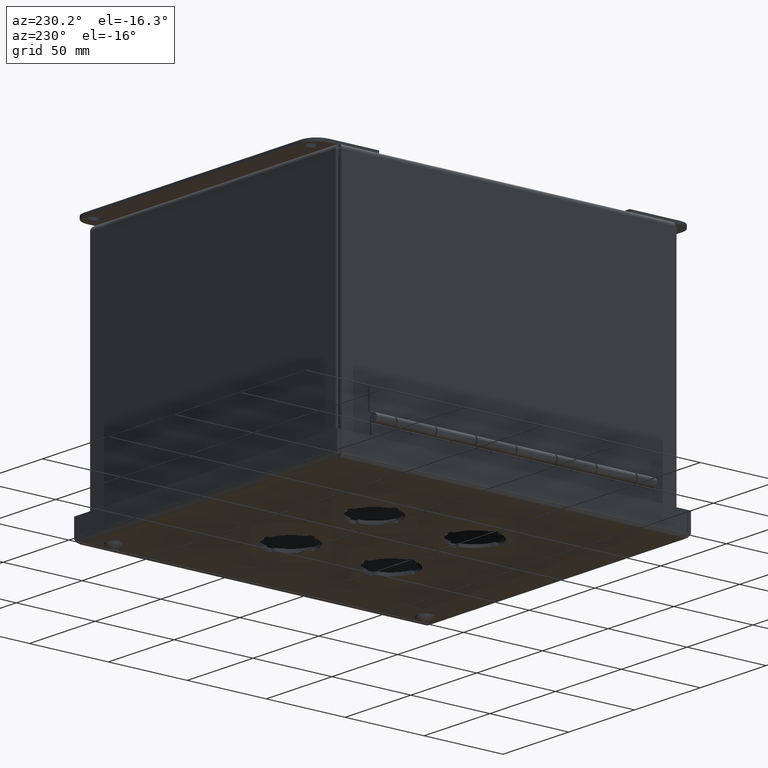
[diagram: clean part render]
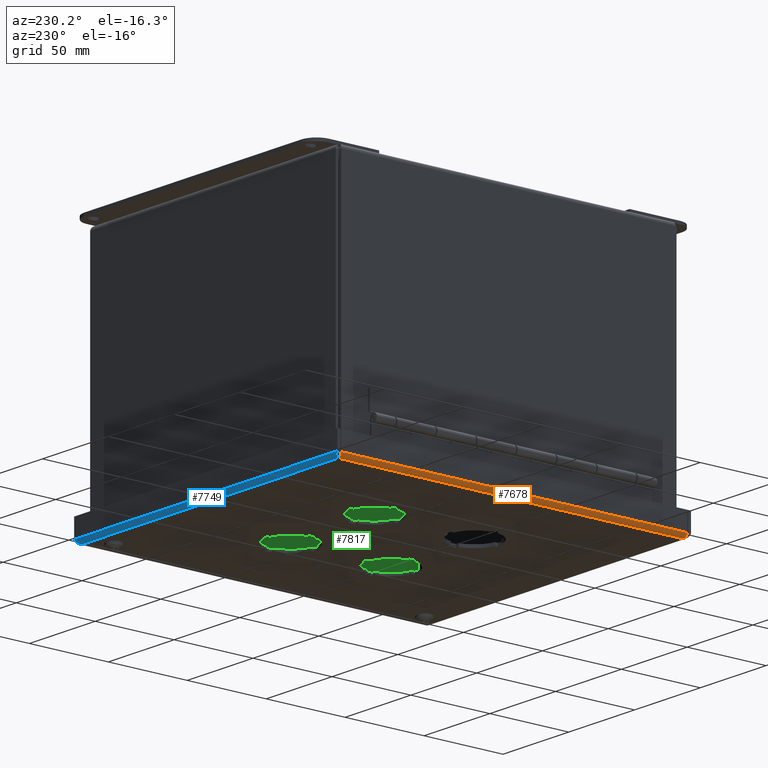
[diagram: same view with three faces highlighted in distinct colors, each labeled with its STEP entity id]
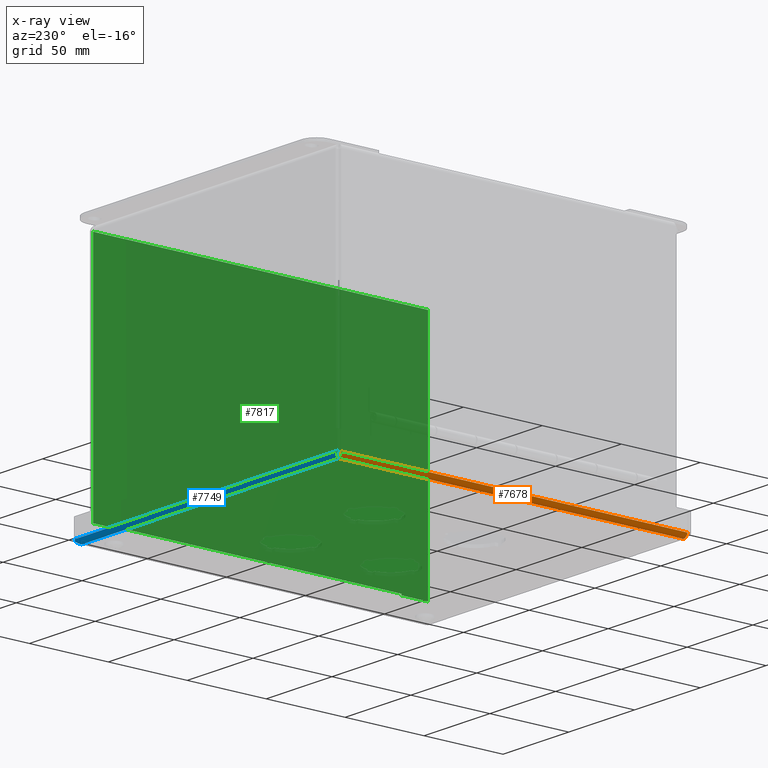
[diagram: x-ray of the same camera — body ghosted, the three highlighted faces saturated]
A machine part, auxiliary view with three faces highlighted in distinct colors.
The next image is the same camera in x-ray (body ghosted, the three faces saturated) — at least one of them is partly hidden behind the body in this view.
Their STEP definitions:

[orange] entity #7678 — the highlighted cylindrical surface (edge-blend (fillet) strip) has radius 2.6733 mm, axis along (0, 1, 0).
#603=B_SPLINE_CURVE_WITH_KNOTS('',3,(#11252,#11253,#11254,#11255),
 .UNSPECIFIED.,.F.,.F.,(4,4),(-1.,-0.824761208305063),.UNSPECIFIED.);
#605=B_SPLINE_CURVE_WITH_KNOTS('',3,(#11329,#11330,#11331,#11332,#11333),
 .UNSPECIFIED.,.F.,.F.,(4,1,4),(-0.824761208305118,-0.353469089273622,0.),
 .UNSPECIFIED.);
#608=B_SPLINE_CURVE_WITH_KNOTS('',3,(#11380,#11381,#11382,#11383,#11384,
#11385,#11386),.UNSPECIFIED.,.F.,.F.,(4,3,4),(1.66755498298699E-13,0.353469089273746,
0.824761208305099),.UNSPECIFIED.);
#610=B_SPLINE_CURVE_WITH_KNOTS('',3,(#11439,#11440,#11441,#11442),
 .UNSPECIFIED.,.F.,.F.,(4,4),(0.82476120830507,1.),.UNSPECIFIED.);
#672=CYLINDRICAL_SURFACE('',#8120,0.10525);
#810=FACE_OUTER_BOUND('',#1249,.T.);
#1249=EDGE_LOOP('',(#5085,#5086,#5087,#5088,#5089,#5090));
#1822=LINE('',#11304,#2536);
#1831=LINE('',#11444,#2545);
#2536=VECTOR('',#8887,8.64000000000001);
#2545=VECTOR('',#8906,8.6095);
#3233=VERTEX_POINT('',#11233);
#3235=VERTEX_POINT('',#11250);
#3237=VERTEX_POINT('',#11280);
#3242=VERTEX_POINT('',#11302);
#3245=VERTEX_POINT('',#11365);
#3246=VERTEX_POINT('',#11378);
#3952=EDGE_CURVE('',#3235,#3233,#603,.T.);
#3964=EDGE_CURVE('',#3242,#3235,#1822,.T.);
#3967=EDGE_CURVE('',#3233,#3237,#605,.T.);
#3973=EDGE_CURVE('',#3246,#3245,#608,.T.);
#3978=EDGE_CURVE('',#3245,#3242,#610,.T.);
#3979=EDGE_CURVE('',#3237,#3246,#1831,.T.);
#5085=ORIENTED_EDGE('',*,*,#3952,.F.);
#5086=ORIENTED_EDGE('',*,*,#3964,.F.);
#5087=ORIENTED_EDGE('',*,*,#3978,.F.);
#5088=ORIENTED_EDGE('',*,*,#3973,.F.);
#5089=ORIENTED_EDGE('',*,*,#3979,.F.);
#5090=ORIENTED_EDGE('',*,*,#3967,.F.);
#7678=ADVANCED_FACE('',(#810),#672,.T.);
#8120=AXIS2_PLACEMENT_3D('',#11443,#8904,#8905);
#8887=DIRECTION('',(3.10116888721693E-16,-1.,2.42185473454632E-34));
#8904=DIRECTION('center_axis',(-3.06161699786838E-16,1.,0.));
#8905=DIRECTION('ref_axis',(-1.,0.,4.11139878571421E-14));
#8906=DIRECTION('',(-3.04613981522469E-16,1.,0.));
#11233=CARTESIAN_POINT('',(0.00396230956462233,0.0926723915733524,0.0766428983246076));
#11250=CARTESIAN_POINT('',(2.89575887328412E-15,0.0900000000000014,0.105250000000003));
#11252=CARTESIAN_POINT('Ctrl Pts',(2.90941811325244E-15,0.0900000000000014,
0.105250000000003));
#11253=CARTESIAN_POINT('Ctrl Pts',(2.63798061781969E-15,0.0908907971911175,
0.0955928055350863));
#11254=CARTESIAN_POINT('Ctrl Pts',(0.00137395342200049,0.0917815943822336,
0.0859229329410069));
#11255=CARTESIAN_POINT('Ctrl Pts',(0.0040046799167246,0.0926723915733497,
0.0766089436273439));
#11280=CARTESIAN_POINT('',(0.105250000000002,0.105250000000002,-3.27821759239712E-17));
#11302=CARTESIAN_POINT('',(2.40402623442455E-16,8.73000000000001,0.105249999999999));
#11304=CARTESIAN_POINT('',(1.5256966222121E-15,4.41,0.10525));
#11329=CARTESIAN_POINT('Ctrl Pts',(0.00396230956461866,0.0926723915733487,
0.0766428983246157));
#11330=CARTESIAN_POINT('Ctrl Pts',(0.0110216261578409,0.0950681265117591,
0.0516483399141453));
#11331=CARTESIAN_POINT('Ctrl Pts',(0.040264284001057,0.0992606626539776,
0.0128977783707265));
#11332=CARTESIAN_POINT('Ctrl Pts',(0.0857707528571009,0.103453198796195,
-3.22345458176617E-15));
#11333=CARTESIAN_POINT('Ctrl Pts',(0.105250000000022,0.105250000000003,
4.91732638859567E-16));
#11365=CARTESIAN_POINT('',(0.00396230956461939,8.72732760842665,0.0766428983246095));
#11378=CARTESIAN_POINT('',(0.105249999999998,8.71475,-1.09273919746571E-17));
#11380=CARTESIAN_POINT('Ctrl Pts',(0.105250000000025,8.71475,5.02660030834224E-16));
#11381=CARTESIAN_POINT('Ctrl Pts',(0.0857707528570863,8.71654680120387,
-4.14577497054132E-15));
#11382=CARTESIAN_POINT('Ctrl Pts',(0.0662762700794399,8.71834360240767,
0.00554042593434509));
#11383=CARTESIAN_POINT('Ctrl Pts',(0.0497619125337914,8.72014040361146,
0.0158183451336888));
#11384=CARTESIAN_POINT('Ctrl Pts',(0.0277427691395974,8.72253613854986,
0.0295222373994779));
#11385=CARTESIAN_POINT('Ctrl Pts',(0.0110216261578422,8.72493187348823,
0.0516483399141429));
#11386=CARTESIAN_POINT('Ctrl Pts',(0.00396230956461932,8.72732760842665,
0.0766428983246042));
#11439=CARTESIAN_POINT('Ctrl Pts',(0.00401583396316964,8.72732760842664,
0.0766231389942167));
#11440=CARTESIAN_POINT('Ctrl Pts',(0.00137893150270593,8.72821840561777,
0.0859292683711448));
#11441=CARTESIAN_POINT('Ctrl Pts',(3.37713415884046E-16,8.72910920280889,
0.0955928055350919));
#11442=CARTESIAN_POINT('Ctrl Pts',(2.51330015417112E-16,8.73,0.105249999999999));
#11443=CARTESIAN_POINT('Origin',(0.10525,8.74529289321881,0.10525));
#11444=CARTESIAN_POINT('',(0.105250000000002,2.257625,0.));

[blue] entity #7749 — the highlighted cylindrical surface (edge-blend (fillet) strip) has radius 2.6734 mm, axis along (1, -0, 0).
#592=B_SPLINE_CURVE_WITH_KNOTS('',3,(#11025,#11026,#11027,#11028,#11029,
#11030,#11031),.UNSPECIFIED.,.F.,.F.,(4,3,4),(-1.,-0.571428571428573,0.),
 .UNSPECIFIED.);
#609=B_SPLINE_CURVE_WITH_KNOTS('',3,(#11409,#11410,#11411,#11412,#11413,
#11414,#11415),.UNSPECIFIED.,.F.,.F.,(4,3,4),(-1.,-0.571428571428569,0.),
 .UNSPECIFIED.);
#692=CYLINDRICAL_SURFACE('',#8227,0.105250000000001);
#881=FACE_OUTER_BOUND('',#1322,.T.);
#1322=EDGE_LOOP('',(#5367,#5368,#5369,#5370));
#1815=LINE('',#11291,#2529);
#1994=LINE('',#11846,#2708);
#2529=VECTOR('',#8876,7.88);
#2708=VECTOR('',#9283,7.6695);
#3214=VERTEX_POINT('',#11000);
#3215=VERTEX_POINT('',#11023);
#3238=VERTEX_POINT('',#11290);
#3246=VERTEX_POINT('',#11378);
#3916=EDGE_CURVE('',#3214,#3215,#592,.T.);
#3957=EDGE_CURVE('',#3214,#3238,#1815,.T.);
#3975=EDGE_CURVE('',#3238,#3246,#609,.T.);
#4178=EDGE_CURVE('',#3246,#3215,#1994,.T.);
#5367=ORIENTED_EDGE('',*,*,#3957,.F.);
#5368=ORIENTED_EDGE('',*,*,#3916,.T.);
#5369=ORIENTED_EDGE('',*,*,#4178,.F.);
#5370=ORIENTED_EDGE('',*,*,#3975,.F.);
#7749=ADVANCED_FACE('',(#881),#692,.T.);
#8227=AXIS2_PLACEMENT_3D('',#11845,#9281,#9282);
#8876=DIRECTION('',(-1.,-4.69543981243866E-16,9.87456819615817E-30));
#9281=DIRECTION('center_axis',(1.,1.77500783344683E-16,0.));
#9282=DIRECTION('ref_axis',(0.,1.,-5.39880648629131E-15));
#9283=DIRECTION('',(1.,0.,0.));
#11000=CARTESIAN_POINT('',(7.88,8.82,0.105249999999999));
#11023=CARTESIAN_POINT('',(7.77475,8.71475,-1.09273919746571E-17));
#11025=CARTESIAN_POINT('Ctrl Pts',(7.87999999999999,8.82,0.105249999999998));
#11026=CARTESIAN_POINT('Ctrl Pts',(7.86496428571417,8.82,0.081631955229263));
#11027=CARTESIAN_POINT('Ctrl Pts',(7.84992857142853,8.81175095578214,0.057977865584737));
#11028=CARTESIAN_POINT('Ctrl Pts',(7.83489285714279,8.79702489920507,0.0396050854913683));
#11029=CARTESIAN_POINT('Ctrl Pts',(7.81484523809514,8.77739015710231,0.0151080453668766));
#11030=CARTESIAN_POINT('Ctrl Pts',(7.7947976190473,8.74624072636097,-1.80873459023515E-15));
#11031=CARTESIAN_POINT('Ctrl Pts',(7.77474999999999,8.71474999999999,1.85765663569159E-15));
#11290=CARTESIAN_POINT('',(3.81365979915531E-15,8.82,0.105249999999994));
#11291=CARTESIAN_POINT('',(3.94,8.82,0.105249999999997));
#11378=CARTESIAN_POINT('',(0.105249999999998,8.71475,-1.09273919746571E-17));
#11409=CARTESIAN_POINT('Ctrl Pts',(3.76995023125668E-15,8.82,0.105249999999994));
#11410=CARTESIAN_POINT('Ctrl Pts',(0.0150357142857169,8.82,0.08163195522926));
#11411=CARTESIAN_POINT('Ctrl Pts',(0.0300714285714344,8.81175237510379,
0.0579759807264508));
#11412=CARTESIAN_POINT('Ctrl Pts',(0.0451071428571537,8.79702652128695,
0.0396029313676136));
#11413=CARTESIAN_POINT('Ctrl Pts',(0.0651547619047791,8.77739204953117,
0.0151055322224976));
#11414=CARTESIAN_POINT('Ctrl Pts',(0.0852023809524075,8.74624072636095,
-1.79512758497979E-15));
#11415=CARTESIAN_POINT('Ctrl Pts',(0.105250000000008,8.71474999999999,1.85765663569157E-15));
#11845=CARTESIAN_POINT('Origin',(7.80529289321881,8.71475,0.10525));
#11846=CARTESIAN_POINT('',(2.022625,8.71475,0.));

[green] entity #7817 — the highlighted planar face has unit normal (-1, 0, -0).
#949=FACE_OUTER_BOUND('',#1410,.T.);
#1410=EDGE_LOOP('',(#5823,#5824,#5825,#5826,#5827,#5828,#5829,#5830,#5831,
#5832,#5833,#5834));
#2076=LINE('',#12077,#2790);
#2123=LINE('',#12180,#2837);
#2126=LINE('',#12188,#2840);
#2129=LINE('',#12192,#2843);
#2139=LINE('',#12213,#2853);
#2141=LINE('',#12217,#2855);
#2143=LINE('',#12220,#2857);
#2144=LINE('',#12223,#2858);
#2145=LINE('',#12225,#2859);
#2146=LINE('',#12227,#2860);
#2147=LINE('',#12229,#2861);
#2148=LINE('',#12230,#2862);
#2790=VECTOR('',#9509,7.03800000000003);
#2837=VECTOR('',#9600,0.000199999999999981);
#2840=VECTOR('',#9605,0.0314500000000002);
#2843=VECTOR('',#9610,0.000199999999999981);
#2853=VECTOR('',#9624,0.0314500000000002);
#2855=VECTOR('',#9628,0.000199999999999981);
#2857=VECTOR('',#9632,0.000199999999999981);
#2858=VECTOR('',#9635,0.656092893218814);
#2859=VECTOR('',#9636,5.82075);
#2860=VECTOR('',#9637,8.35058578643762);
#2861=VECTOR('',#9638,5.82075);
#2862=VECTOR('',#9639,0.65609289321878);
#3453=VERTEX_POINT('',#12062);
#3454=VERTEX_POINT('',#12066);
#3489=VERTEX_POINT('',#12178);
#3492=VERTEX_POINT('',#12185);
#3493=VERTEX_POINT('',#12187);
#3501=VERTEX_POINT('',#12210);
#3502=VERTEX_POINT('',#12212);
#3503=VERTEX_POINT('',#12216);
#3504=VERTEX_POINT('',#12222);
#3505=VERTEX_POINT('',#12224);
#3506=VERTEX_POINT('',#12226);
#3507=VERTEX_POINT('',#12228);
#4287=EDGE_CURVE('',#3453,#3454,#2076,.T.);
#4338=EDGE_CURVE('',#3454,#3489,#2123,.T.);
#4341=EDGE_CURVE('',#3493,#3492,#2126,.T.);
#4344=EDGE_CURVE('',#3489,#3493,#2129,.T.);
#4354=EDGE_CURVE('',#3502,#3501,#2139,.T.);
#4356=EDGE_CURVE('',#3503,#3453,#2141,.T.);
#4358=EDGE_CURVE('',#3501,#3503,#2143,.T.);
#4359=EDGE_CURVE('',#3492,#3504,#2144,.T.);
#4360=EDGE_CURVE('',#3505,#3504,#2145,.T.);
#4361=EDGE_CURVE('',#3505,#3506,#2146,.T.);
#4362=EDGE_CURVE('',#3506,#3507,#2147,.T.);
#4363=EDGE_CURVE('',#3507,#3502,#2148,.T.);
#5823=ORIENTED_EDGE('',*,*,#4341,.T.);
#5824=ORIENTED_EDGE('',*,*,#4359,.T.);
#5825=ORIENTED_EDGE('',*,*,#4360,.F.);
#5826=ORIENTED_EDGE('',*,*,#4361,.T.);
#5827=ORIENTED_EDGE('',*,*,#4362,.T.);
#5828=ORIENTED_EDGE('',*,*,#4363,.T.);
#5829=ORIENTED_EDGE('',*,*,#4354,.T.);
#5830=ORIENTED_EDGE('',*,*,#4358,.T.);
#5831=ORIENTED_EDGE('',*,*,#4356,.T.);
#5832=ORIENTED_EDGE('',*,*,#4287,.T.);
#5833=ORIENTED_EDGE('',*,*,#4338,.T.);
#5834=ORIENTED_EDGE('',*,*,#4344,.T.);
#7178=PLANE('',#8328);
#7817=ADVANCED_FACE('',(#949),#7178,.T.);
#8328=AXIS2_PLACEMENT_3D('',#12221,#9633,#9634);
#9509=DIRECTION('',(3.08058523636813E-16,-1.,-1.98736313264578E-16));
#9600=DIRECTION('',(5.99809882330675E-17,0.,-1.));
#9605=DIRECTION('',(-5.99809882330675E-17,0.,1.));
#9610=DIRECTION('',(3.08058523636813E-16,-1.,0.));
#9624=DIRECTION('',(5.99809882330675E-17,0.,-1.));
#9628=DIRECTION('',(-5.99809882330675E-17,0.,1.));
#9632=DIRECTION('',(3.08058523636813E-16,-1.,0.));
#9633=DIRECTION('center_axis',(1.,3.08058523636813E-16,5.99809882330675E-17));
#9634=DIRECTION('ref_axis',(7.04991620636975E-17,0.,-1.));
#9635=DIRECTION('',(3.0877885557785E-16,-1.,-1.96332212087383E-16));
#9636=DIRECTION('',(-6.12323399573677E-17,0.,1.));
#9637=DIRECTION('',(-3.08058523636813E-16,1.,-1.16146962820898E-34));
#9638=DIRECTION('',(-6.12323399573677E-17,0.,1.));
#9639=DIRECTION('',(3.0877885557785E-16,-1.,-1.96332212087383E-16));
#12062=CARTESIAN_POINT('',(0.0740000000000001,7.76900000000003,5.89475));
#12066=CARTESIAN_POINT('',(0.0740000000000022,0.731000000000002,5.89475));
#12077=CARTESIAN_POINT('',(0.0740000000000017,2.4905,5.89475));
#12178=CARTESIAN_POINT('',(0.0740000000000022,0.731000000000002,5.89455));
#12180=CARTESIAN_POINT('',(0.0740000000000024,0.731000000000002,4.43273825013856));
#12185=CARTESIAN_POINT('',(0.0740000000000022,0.730800000000002,5.926));
#12187=CARTESIAN_POINT('',(0.0740000000000022,0.730800000000002,5.89455));
#12188=CARTESIAN_POINT('',(0.0740000000000024,0.730800000000002,4.44846325013856));
#12192=CARTESIAN_POINT('',(0.0740000000000017,2.4904,5.89455));
#12210=CARTESIAN_POINT('',(0.0740000000000001,7.76920000000003,5.89455));
#12212=CARTESIAN_POINT('',(0.0740000000000001,7.76920000000003,5.926));
#12213=CARTESIAN_POINT('',(0.0740000000000002,7.76920000000003,4.43273825013856));
#12216=CARTESIAN_POINT('',(0.0740000000000001,7.76900000000003,5.89455));
#12217=CARTESIAN_POINT('',(0.0740000000000002,7.76900000000003,4.44846325013856));
#12220=CARTESIAN_POINT('',(0.0740000000000006,6.00950000000002,5.89455));
#12221=CARTESIAN_POINT('Origin',(0.0740000000000014,4.25,2.97092650027712));
#12222=CARTESIAN_POINT('',(0.0740000000000025,0.0747071067811891,5.926));
#12223=CARTESIAN_POINT('',(0.0739999999999999,8.42529289321881,5.926));
#12224=CARTESIAN_POINT('',(0.0740000000000028,0.074707106781189,0.10525));
#12225=CARTESIAN_POINT('',(0.0740000000000028,0.0747071067811891,0.10525));
#12226=CARTESIAN_POINT('',(0.0740000000000002,8.42529289321881,0.105250000000002));
#12227=CARTESIAN_POINT('',(0.0740000000000015,4.25,0.10525));
#12228=CARTESIAN_POINT('',(0.0739999999999999,8.42529289321881,5.926));
#12229=CARTESIAN_POINT('',(0.0740000000000002,8.42529289321881,0.105250000000002));
#12230=CARTESIAN_POINT('',(0.0739999999999999,8.42529289321881,5.926));